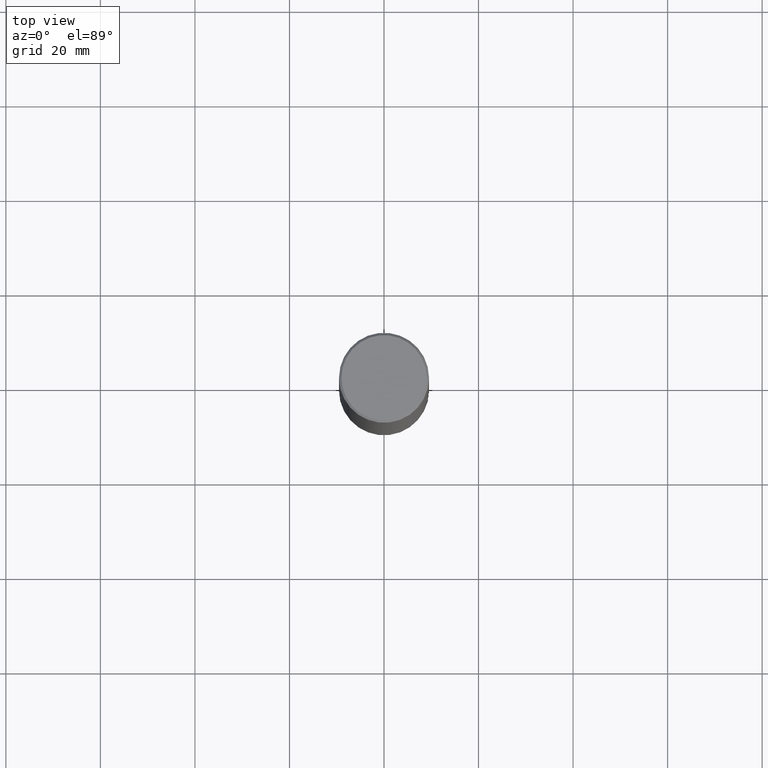
[diagram: clean part render]
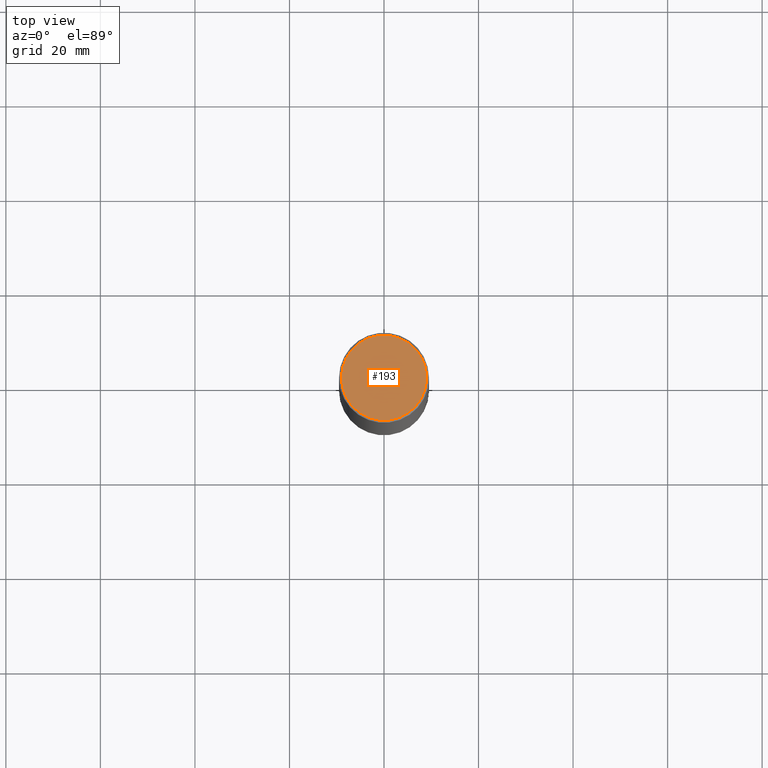
[diagram: same view with one face highlighted and labeled with its STEP entity id]
A machine part, top view. The second image highlights one B-rep face of the part: STEP entity #193.
In plain terms, the highlighted planar face has unit normal (0, -0, -1).
Its self-contained STEP definition (entity closure, byte-faithful):
#21 = CARTESIAN_POINT ( 'NONE',  ( 0.3549999999999997047, -2.538996582575039076E-15, 4.268512490117958041E-18 ) ) ;
#40 = AXIS2_PLACEMENT_3D ( 'NONE', #85, #188, #74 ) ;
#74 = DIRECTION ( 'NONE',  ( -1.000000000000000000, 6.982962677686265922E-15, -4.876176775795935793E-29 ) ) ;
#85 = CARTESIAN_POINT ( 'NONE',  ( 2.478951750578622237E-15, 0.3549999999999997047, -1.237341619044265441E-15 ) ) ;
#115 = DIRECTION ( 'NONE',  ( -2.445468806185136597E-29, 3.491481338843145583E-15, 1.000000000000000000 ) ) ;
#149 = AXIS2_PLACEMENT_3D ( 'NONE', #334, #115, #218 ) ;
#176 = EDGE_CURVE ( 'NONE', #314, #202, #223, .T. ) ;
#178 = AXIS2_PLACEMENT_3D ( 'NONE', #267, #183, #353 ) ;
#183 = DIRECTION ( 'NONE',  ( -2.445468806185136597E-29, 3.491481338843145583E-15, 1.000000000000000000 ) ) ;
#188 = DIRECTION ( 'NONE',  ( 2.438088387897960049E-29, -3.491481338843145188E-15, -1.000000000000000000 ) ) ;
#193 = ADVANCED_FACE ( 'NONE', ( #215 ), #331, .F. ) ;
#202 = VERTEX_POINT ( 'NONE', #21 ) ;
#215 = FACE_OUTER_BOUND ( 'NONE', #315, .T. ) ;
#218 = DIRECTION ( 'NONE',  ( 1.000000000000000000, -6.982962677686265922E-15, 4.876231632511992107E-29 ) ) ;
#223 = CIRCLE ( 'NONE', #149, 0.3549999999999997047 ) ;
#238 = CARTESIAN_POINT ( 'NONE',  ( -0.3549999999999997047, 2.513866563967053491E-15, 4.268512490082953109E-18 ) ) ;
#257 = ORIENTED_EDGE ( 'NONE', *, *, #176, .T. ) ;
#264 = CIRCLE ( 'NONE', #178, 0.3549999999999997047 ) ;
#267 = CARTESIAN_POINT ( 'NONE',  ( -1.043851414335219820E-46, 1.490343170380447200E-32, 4.268512490100411279E-18 ) ) ;
#274 = EDGE_CURVE ( 'NONE', #202, #314, #264, .T. ) ;
#302 = ORIENTED_EDGE ( 'NONE', *, *, #274, .T. ) ;
#314 = VERTEX_POINT ( 'NONE', #238 ) ;
#315 = EDGE_LOOP ( 'NONE', ( #257, #302 ) ) ;
#331 = PLANE ( 'NONE',  #40 ) ;
#334 = CARTESIAN_POINT ( 'NONE',  ( -1.043851414335219820E-46, 1.490343170380447200E-32, 4.268512490100411279E-18 ) ) ;
#353 = DIRECTION ( 'NONE',  ( 1.000000000000000000, -6.982962677686265922E-15, 4.876231632511992107E-29 ) ) ;